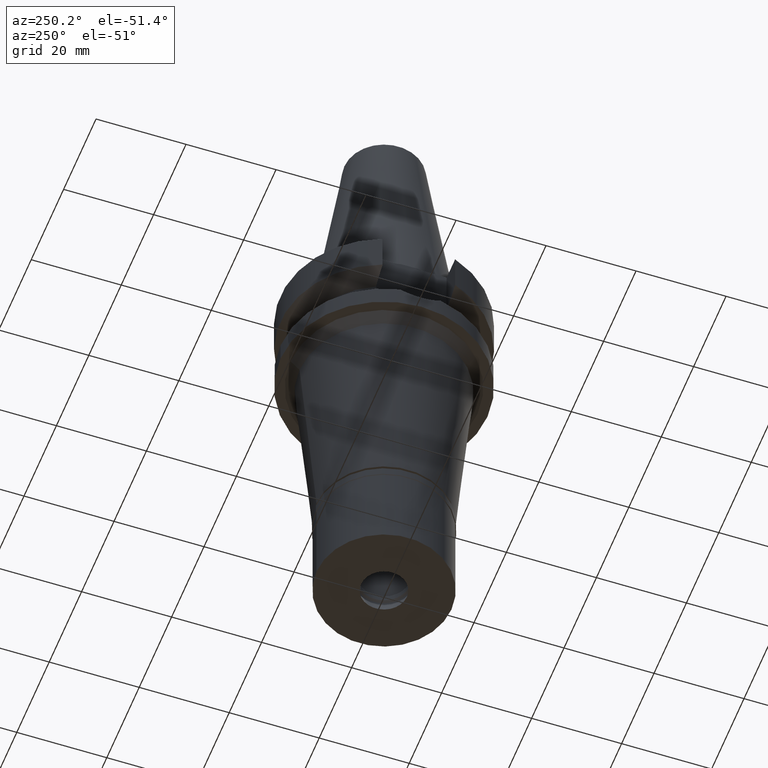
[diagram: clean part render]
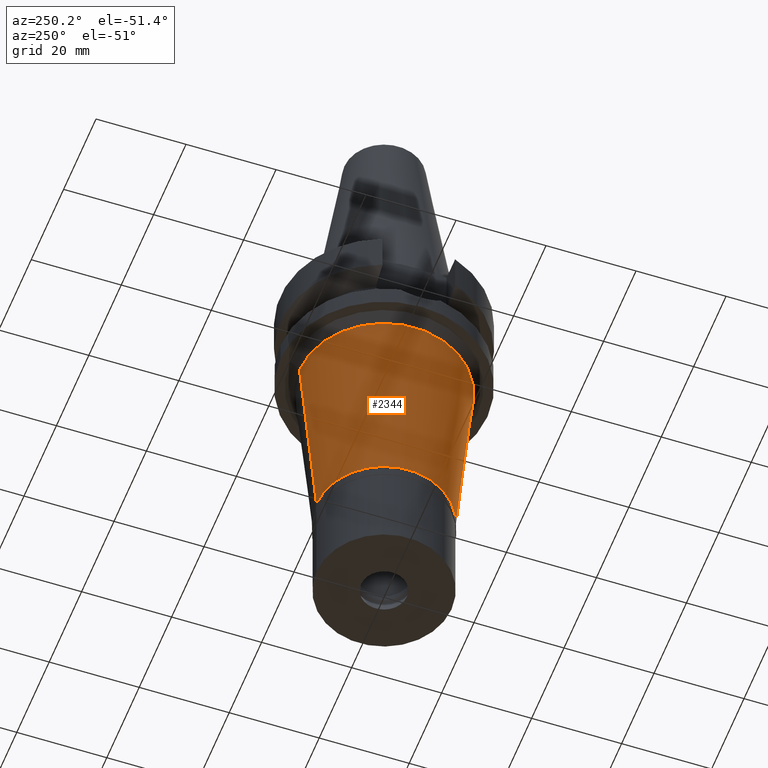
[diagram: same view with one face highlighted and labeled with its STEP entity id]
A machine part, auxiliary view. The second image highlights one B-rep face of the part: STEP entity #2344.
In plain terms, the highlighted conical surface has half-angle 5 deg.
Its self-contained STEP definition (entity closure, byte-faithful):
#7 = LINE ( 'NONE', #3039, #1279 ) ;
#88 = DIRECTION ( 'NONE',  ( 0.0000000000000000000, -1.000000000000000000, 0.0000000000000000000 ) ) ;
#274 = CARTESIAN_POINT ( 'NONE',  ( 0.0000000000000000000, 0.0000000000000000000, -24.00000000000000000 ) ) ;
#359 = ORIENTED_EDGE ( 'NONE', *, *, #1578, .T. ) ;
#420 = CARTESIAN_POINT ( 'NONE',  ( 0.0000000000000000000, 0.0000000000000000000, -67.20000000000000284 ) ) ;
#580 = EDGE_CURVE ( 'NONE', #1230, #1953, #2370, .T. ) ;
#608 = CARTESIAN_POINT ( 'NONE',  ( 0.0000000000000000000, 15.00000000000000000, -67.20000000000000284 ) ) ;
#710 = LINE ( 'NONE', #1441, #1926 ) ;
#827 = CARTESIAN_POINT ( 'NONE',  ( 0.0000000000000000000, 18.77951026431999892, -24.00000000000000000 ) ) ;
#878 = CARTESIAN_POINT ( 'NONE',  ( 0.0000000000000000000, -18.77951026431999892, -24.00000000000000000 ) ) ;
#941 = CONICAL_SURFACE ( 'NONE', #2682, 16.88975513216000124, 0.08726646259969973729 ) ;
#972 = ORIENTED_EDGE ( 'NONE', *, *, #2884, .T. ) ;
#1008 = DIRECTION ( 'NONE',  ( 0.0000000000000000000, 0.0000000000000000000, 1.000000000000000000 ) ) ;
#1230 = VERTEX_POINT ( 'NONE', #878 ) ;
#1279 = VECTOR ( 'NONE', #2835, 1000.000000000000114 ) ;
#1317 = CIRCLE ( 'NONE', #3049, 15.00000000000000000 ) ;
#1351 = DIRECTION ( 'NONE',  ( 0.0000000000000000000, 1.000000000000000000, 0.0000000000000000000 ) ) ;
#1372 = VERTEX_POINT ( 'NONE', #608 ) ;
#1441 = CARTESIAN_POINT ( 'NONE',  ( 0.0000000000000000000, 18.77951026431999892, -24.00000000000000000 ) ) ;
#1478 = ORIENTED_EDGE ( 'NONE', *, *, #580, .T. ) ;
#1567 = AXIS2_PLACEMENT_3D ( 'NONE', #274, #2209, #88 ) ;
#1578 = EDGE_CURVE ( 'NONE', #1953, #1372, #710, .T. ) ;
#1725 = FACE_OUTER_BOUND ( 'NONE', #2396, .T. ) ;
#1755 = EDGE_CURVE ( 'NONE', #1230, #1909, #7, .T. ) ;
#1909 = VERTEX_POINT ( 'NONE', #2753 ) ;
#1926 = VECTOR ( 'NONE', #2374, 1000.000000000000114 ) ;
#1953 = VERTEX_POINT ( 'NONE', #827 ) ;
#1960 = DIRECTION ( 'NONE',  ( 0.0000000000000000000, 1.000000000000000000, 0.0000000000000000000 ) ) ;
#2081 = DIRECTION ( 'NONE',  ( 0.0000000000000000000, 0.0000000000000000000, 1.000000000000000000 ) ) ;
#2209 = DIRECTION ( 'NONE',  ( 0.0000000000000000000, 0.0000000000000000000, -1.000000000000000000 ) ) ;
#2218 = ORIENTED_EDGE ( 'NONE', *, *, #1755, .F. ) ;
#2344 = ADVANCED_FACE ( 'NONE', ( #1725 ), #941, .T. ) ;
#2370 = CIRCLE ( 'NONE', #1567, 18.77951026431999892 ) ;
#2374 = DIRECTION ( 'NONE',  ( 0.0000000000000000000, -0.08715574274766389740, -0.9961946980917451011 ) ) ;
#2396 = EDGE_LOOP ( 'NONE', ( #972, #2218, #1478, #359 ) ) ;
#2640 = CARTESIAN_POINT ( 'NONE',  ( 0.0000000000000000000, 0.0000000000000000000, -45.60000000000000142 ) ) ;
#2682 = AXIS2_PLACEMENT_3D ( 'NONE', #2640, #1008, #1960 ) ;
#2753 = CARTESIAN_POINT ( 'NONE',  ( 0.0000000000000000000, -15.00000000000000000, -67.20000000000000284 ) ) ;
#2835 = DIRECTION ( 'NONE',  ( 0.0000000000000000000, 0.08715574274766389740, -0.9961946980917451011 ) ) ;
#2884 = EDGE_CURVE ( 'NONE', #1372, #1909, #1317, .T. ) ;
#3039 = CARTESIAN_POINT ( 'NONE',  ( 0.0000000000000000000, -18.77951026431999892, -24.00000000000000000 ) ) ;
#3049 = AXIS2_PLACEMENT_3D ( 'NONE', #420, #2081, #1351 ) ;